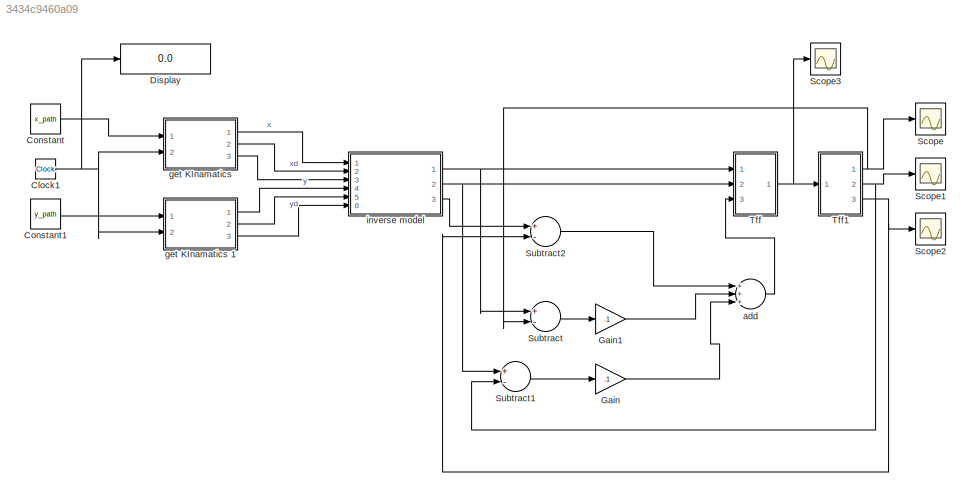
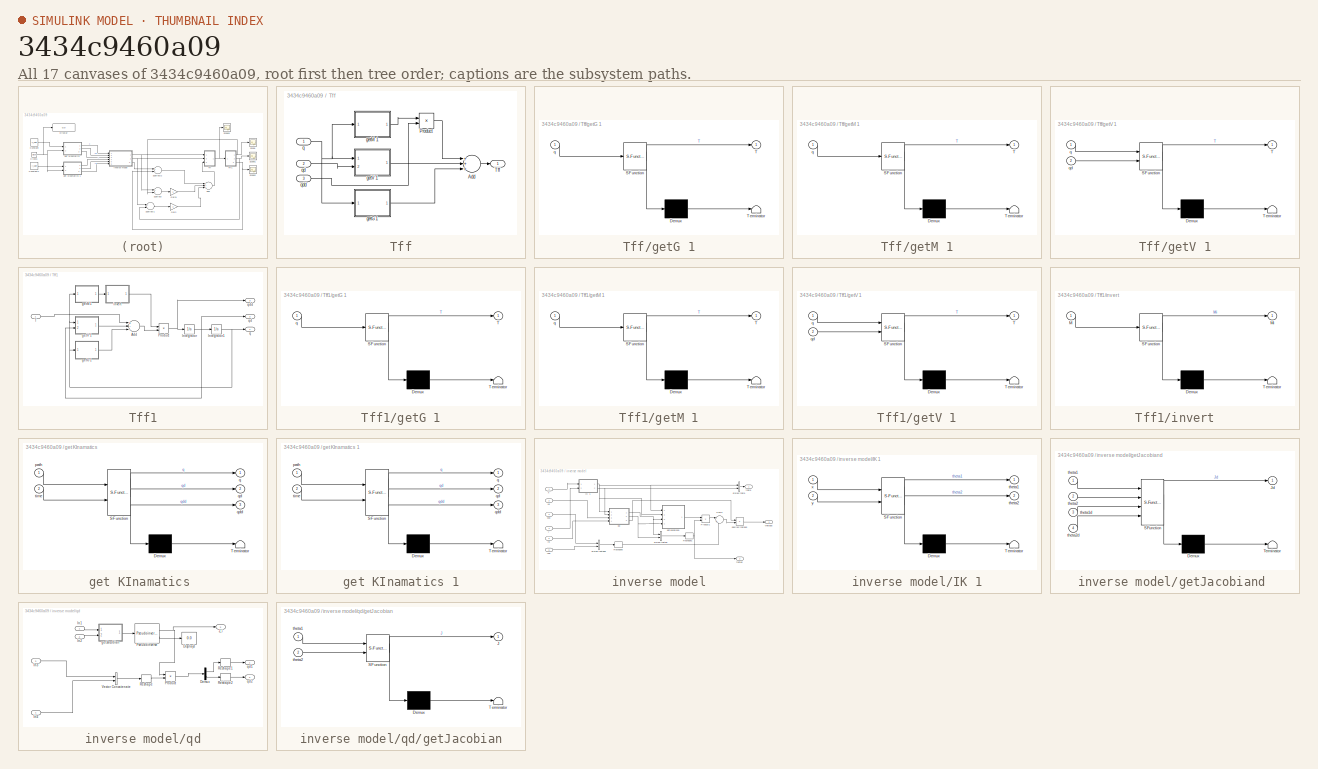
[diagram: thumbnail index - all 17 canvases of the model, root first then tree order]
MODEL slx_3434c9460a09
KIND model
CONFIG AbsTol = auto
CONFIG FixedStep = auto
CONFIG MaxStep = auto
CONFIG MinStep = auto
CONFIG RelTol = 1e-3
CONFIG SampleTimeConstraint = Specified
CONFIG Solver = VariableStepAuto
CONFIG SolverMode = Auto
CONFIG SolverName = VariableStepAuto
CONFIG StartTime = 0.0
CONFIG StopTime = 10
BLOCK [Clock] Clock1
BLOCK [Constant] Constant
  Value = x_path
BLOCK [Constant] Constant1
  Value = y_path
BLOCK [Display] Display
  Decimation = 1
  Ports = [1]
BLOCK [Gain] Gain
  Gain = .1
  OutDataTypeStr = Inherit: Inherit via internal rule
  ParamDataTypeStr = Inherit: Inherit via internal rule
  SaturateOnIntegerOverflow = off
BLOCK [Gain] Gain1
  Gain = .1
  OutDataTypeStr = Inherit: Inherit via internal rule
  ParamDataTypeStr = Inherit: Inherit via internal rule
  SaturateOnIntegerOverflow = off
BLOCK [Scope] Scope
  Ports = [1]
  ScopeSpecificationString = Simulink.scopes.TimeScopeBlockCfg('CurrentConfiguration', extmgr.ConfigurationSet(extmgr.Configuration('Core','General UI',true),extmgr.Configuration('Core','Source UI',true),extmgr.Configuration('Sources','WiredSimulink',true),extmgr.Configuration('Visuals','Time Domain',true,'SerializedDisplays',{struct('MinYLimReal','36199.25705','MaxYLimReal','48927.23224','YLabelReal','','MinYLimMag','36199.2...<+1440ch>
BLOCK [Scope] Scope1
  Ports = [1]
  ScopeSpecificationString = Simulink.scopes.TimeScopeBlockCfg('CurrentConfiguration', extmgr.ConfigurationSet(extmgr.Configuration('Core','General UI',true),extmgr.Configuration('Core','Source UI',true),extmgr.Configuration('Sources','WiredSimulink',true,'DataLoggingVariableName','ScopeData1'),extmgr.Configuration('Visuals','Time Domain',true,'SerializedDisplays',{struct('MinYLimReal','-3125.25676','MaxYLimReal','14810.27464...<+1477ch>
BLOCK [Scope] Scope2
  Ports = [1]
  ScopeSpecificationString = C++SS(StrPVP('SaveName','ScopeData'),StrPVP('SaveName','ScopeData2'),StrPVP('LimitDataPoints','on'),StrPVP('DataFormat','Array'),StrPVP('Decimation','1'),StrPVP('BlockParamSampleInput','off'))
BLOCK [Scope] Scope3
  Ports = [1]
  ScopeSpecificationString = Simulink.scopes.TimeScopeBlockCfg('CurrentConfiguration', extmgr.ConfigurationSet(extmgr.Configuration('Core','General UI',true),extmgr.Configuration('Core','Source UI',true),extmgr.Configuration('Sources','WiredSimulink',true,'DataLoggingVariableName','ScopeData3'),extmgr.Configuration('Visuals','Time Domain',true,'SerializedDisplays',{struct('MinYLimReal','-55107.98391','MaxYLimReal','494839.130...<+1459ch>
BLOCK [Sum] Subtract
  InputSameDT = off
  Inputs = +-
  OutDataTypeStr = Inherit: Inherit via internal rule
  Ports = [2, 1]
  SaturateOnIntegerOverflow = off
BLOCK [Sum] Subtract1
  InputSameDT = off
  Inputs = +-
  OutDataTypeStr = Inherit: Inherit via internal rule
  Ports = [2, 1]
  SaturateOnIntegerOverflow = off
BLOCK [Sum] Subtract2
  InputSameDT = off
  Inputs = +-
  OutDataTypeStr = Inherit: Inherit via internal rule
  Ports = [2, 1]
  SaturateOnIntegerOverflow = off
BLOCK [SubSystem] Tff
  Ports = [3, 1]
  RequestExecContextInheritance = off
  Variant = off
BLOCK [Sum] Tff/Add
  InputSameDT = off
  Inputs = +++
  OutDataTypeStr = Inherit: Inherit via internal rule
  Ports = [3, 1]
  SaturateOnIntegerOverflow = off
BLOCK [Product] Tff/Product
  InputSameDT = off
  Multiplication = Matrix(*)
  OutDataTypeStr = Inherit: Inherit via internal rule
  Ports = [2, 1]
  RndMeth = Floor
  SaturateOnIntegerOverflow = off
BLOCK [Outport] Tff/Tff
  IconDisplay = Port number
BLOCK [SubSystem] Tff/getG 1
  ErrorFcn = Stateflow.Translate.translate
  PermitHierarchicalResolution = ExplicitOnly
  Ports = [1, 1]
  RequestExecContextInheritance = off
  SFBlockType = MATLAB Function
  TreatAsAtomicUnit = on
  Variant = off
BLOCK [Demux] Tff/getG 1/ Demux 
  Outputs = 1
  Ports = [1, 1]
BLOCK [S-Function] Tff/getG 1/ SFunction 
  EnableBusSupport = on
  FunctionName = sf_sfun
  PortCounts = [1 2]
  Ports = [1, 2]
  SFunctionDeploymentMode = off
  Tag = Stateflow S-Function problem2_1 8
BLOCK [Terminator] Tff/getG 1/ Terminator 
BLOCK [Outport] Tff/getG 1/T
  IconDisplay = Port number
BLOCK [Inport] Tff/getG 1/q
  IconDisplay = Port number
BLOCK [SubSystem] Tff/getM 1
  ErrorFcn = Stateflow.Translate.translate
  PermitHierarchicalResolution = ExplicitOnly
  Ports = [1, 1]
  RequestExecContextInheritance = off
  SFBlockType = MATLAB Function
  TreatAsAtomicUnit = on
  Variant = off
BLOCK [Demux] Tff/getM 1/ Demux 
  Outputs = 1
  Ports = [1, 1]
BLOCK [S-Function] Tff/getM 1/ SFunction 
  EnableBusSupport = on
  FunctionName = sf_sfun
  PortCounts = [1 2]
  Ports = [1, 2]
  SFunctionDeploymentMode = off
  Tag = Stateflow S-Function problem2_1 6
BLOCK [Terminator] Tff/getM 1/ Terminator 
BLOCK [Outport] Tff/getM 1/T
  IconDisplay = Port number
BLOCK [Inport] Tff/getM 1/q
  IconDisplay = Port number
BLOCK [SubSystem] Tff/getV 1
  ErrorFcn = Stateflow.Translate.translate
  PermitHierarchicalResolution = ExplicitOnly
  Ports = [2, 1]
  RequestExecContextInheritance = off
  SFBlockType = MATLAB Function
  TreatAsAtomicUnit = on
  Variant = off
BLOCK [Demux] Tff/getV 1/ Demux 
  Outputs = 1
  Ports = [1, 1]
BLOCK [S-Function] Tff/getV 1/ SFunction 
  EnableBusSupport = on
  FunctionName = sf_sfun
  PortCounts = [2 2]
  Ports = [2, 2]
  SFunctionDeploymentMode = off
  Tag = Stateflow S-Function problem2_1 7
BLOCK [Terminator] Tff/getV 1/ Terminator 
BLOCK [Outport] Tff/getV 1/T
  IconDisplay = Port number
BLOCK [Inport] Tff/getV 1/q
  IconDisplay = Port number
BLOCK [Inport] Tff/getV 1/qd
  IconDisplay = Port number
  Port = 2
BLOCK [Inport] Tff/q
  IconDisplay = Port number
BLOCK [Inport] Tff/qd
  IconDisplay = Port number
  Port = 2
BLOCK [Inport] Tff/qdd
  IconDisplay = Port number
  Port = 3
BLOCK [SubSystem] Tff1
  Ports = [1, 3]
  RequestExecContextInheritance = off
  Variant = off
BLOCK [Sum] Tff1/Add
  InputSameDT = off
  Inputs = +--
  OutDataTypeStr = Inherit: Inherit via internal rule
  Ports = [3, 1]
  SaturateOnIntegerOverflow = off
BLOCK [Integrator] Tff1/Integrator
  InitialCondition = [0;0]
  Ports = [1, 1]
BLOCK [Integrator] Tff1/Integrator1
  InitialCondition = x2_i
  Ports = [1, 1]
BLOCK [Product] Tff1/Product
  InputSameDT = off
  Multiplication = Matrix(*)
  OutDataTypeStr = Inherit: Inherit via internal rule
  Ports = [2, 1]
  RndMeth = Floor
  SaturateOnIntegerOverflow = off
BLOCK [Inport] Tff1/T
  IconDisplay = Port number
BLOCK [SubSystem] Tff1/getG 1
  ErrorFcn = Stateflow.Translate.translate
  PermitHierarchicalResolution = ExplicitOnly
  Ports = [1, 1]
  RequestExecContextInheritance = off
  SFBlockType = MATLAB Function
  TreatAsAtomicUnit = on
  Variant = off
BLOCK [Demux] Tff1/getG 1/ Demux 
  Outputs = 1
  Ports = [1, 1]
BLOCK [S-Function] Tff1/getG 1/ SFunction 
  EnableBusSupport = on
  FunctionName = sf_sfun
  PortCounts = [1 2]
  Ports = [1, 2]
  SFunctionDeploymentMode = off
  Tag = Stateflow S-Function problem2_1 9
BLOCK [Terminator] Tff1/getG 1/ Terminator 
BLOCK [Outport] Tff1/getG 1/T
  IconDisplay = Port number
BLOCK [Inport] Tff1/getG 1/q
  IconDisplay = Port number
BLOCK [SubSystem] Tff1/getM 1
  ErrorFcn = Stateflow.Translate.translate
  PermitHierarchicalResolution = ExplicitOnly
  Ports = [1, 1]
  RequestExecContextInheritance = off
  SFBlockType = MATLAB Function
  TreatAsAtomicUnit = on
  Variant = off
BLOCK [Demux] Tff1/getM 1/ Demux 
  Outputs = 1
  Ports = [1, 1]
BLOCK [S-Function] Tff1/getM 1/ SFunction 
  EnableBusSupport = on
  FunctionName = sf_sfun
  PortCounts = [1 2]
  Ports = [1, 2]
  SFunctionDeploymentMode = off
  Tag = Stateflow S-Function problem2_1 10
BLOCK [Terminator] Tff1/getM 1/ Terminator 
BLOCK [Outport] Tff1/getM 1/T
  IconDisplay = Port number
BLOCK [Inport] Tff1/getM 1/q
  IconDisplay = Port number
BLOCK [SubSystem] Tff1/getV 1
  ErrorFcn = Stateflow.Translate.translate
  PermitHierarchicalResolution = ExplicitOnly
  Ports = [2, 1]
  RequestExecContextInheritance = off
  SFBlockType = MATLAB Function
  TreatAsAtomicUnit = on
  Variant = off
BLOCK [Demux] Tff1/getV 1/ Demux 
  Outputs = 1
  Ports = [1, 1]
BLOCK [S-Function] Tff1/getV 1/ SFunction 
  EnableBusSupport = on
  FunctionName = sf_sfun
  PortCounts = [2 2]
  Ports = [2, 2]
  SFunctionDeploymentMode = off
  Tag = Stateflow S-Function problem2_1 11
BLOCK [Terminator] Tff1/getV 1/ Terminator 
BLOCK [Outport] Tff1/getV 1/T
  IconDisplay = Port number
BLOCK [Inport] Tff1/getV 1/q
  IconDisplay = Port number
BLOCK [Inport] Tff1/getV 1/qd
  IconDisplay = Port number
  Port = 2
BLOCK [SubSystem] Tff1/invert
  ErrorFcn = Stateflow.Translate.translate
  PermitHierarchicalResolution = ExplicitOnly
  Ports = [1, 1]
  RequestExecContextInheritance = off
  SFBlockType = MATLAB Function
  TreatAsAtomicUnit = on
  Variant = off
BLOCK [Demux] Tff1/invert/ Demux 
  Outputs = 1
  Ports = [1, 1]
BLOCK [S-Function] Tff1/invert/ SFunction 
  EnableBusSupport = on
  FunctionName = sf_sfun
  PortCounts = [1 2]
  Ports = [1, 2]
  SFunctionDeploymentMode = off
  Tag = Stateflow S-Function problem2_1 12
BLOCK [Terminator] Tff1/invert/ Terminator 
BLOCK [Inport] Tff1/invert/M
  IconDisplay = Port number
BLOCK [Outport] Tff1/invert/Mi
  IconDisplay = Port number
BLOCK [Outport] Tff1/q
  IconDisplay = Port number
BLOCK [Outport] Tff1/qd
  IconDisplay = Port number
  Port = 2
BLOCK [Outport] Tff1/qdd
  IconDisplay = Port number
  Port = 3
BLOCK [Sum] add 
  InputSameDT = off
  Inputs = +++
  OutDataTypeStr = Inherit: Inherit via internal rule
  Ports = [3, 1]
  SaturateOnIntegerOverflow = off
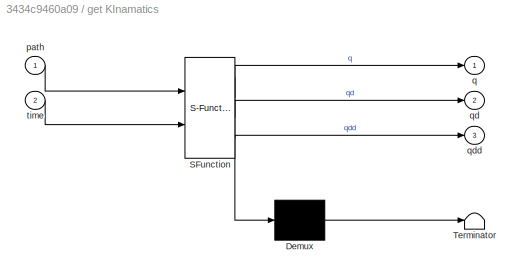
BLOCK [SubSystem] get KInamatics 
  ErrorFcn = Stateflow.Translate.translate
  PermitHierarchicalResolution = ExplicitOnly
  Ports = [2, 3]
  RequestExecContextInheritance = off
  SFBlockType = MATLAB Function
  TreatAsAtomicUnit = on
  Variant = off
BLOCK [Demux] get KInamatics / Demux 
  Outputs = 1
  Ports = [1, 1]
BLOCK [S-Function] get KInamatics / SFunction 
  EnableBusSupport = on
  FunctionName = sf_sfun
  PortCounts = [2 4]
  Ports = [2, 4]
  SFunctionDeploymentMode = off
  Tag = Stateflow S-Function problem2_1 2
BLOCK [Terminator] get KInamatics / Terminator 
BLOCK [Inport] get KInamatics /path
  IconDisplay = Port number
BLOCK [Outport] get KInamatics /q
  IconDisplay = Port number
BLOCK [Outport] get KInamatics /qd
  IconDisplay = Port number
  Port = 2
BLOCK [Outport] get KInamatics /qdd
  IconDisplay = Port number
  Port = 3
BLOCK [Inport] get KInamatics /time
  IconDisplay = Port number
  Port = 2
BLOCK [SubSystem] get KInamatics 1
  ErrorFcn = Stateflow.Translate.translate
  PermitHierarchicalResolution = ExplicitOnly
  Ports = [2, 3]
  RequestExecContextInheritance = off
  SFBlockType = MATLAB Function
  TreatAsAtomicUnit = on
  Variant = off
BLOCK [Demux] get KInamatics 1/ Demux 
  Outputs = 1
  Ports = [1, 1]
BLOCK [S-Function] get KInamatics 1/ SFunction 
  EnableBusSupport = on
  FunctionName = sf_sfun
  PortCounts = [2 4]
  Ports = [2, 4]
  SFunctionDeploymentMode = off
  Tag = Stateflow S-Function problem2_1 1
BLOCK [Terminator] get KInamatics 1/ Terminator 
BLOCK [Inport] get KInamatics 1/path
  IconDisplay = Port number
BLOCK [Outport] get KInamatics 1/q
  IconDisplay = Port number
BLOCK [Outport] get KInamatics 1/qd
  IconDisplay = Port number
  Port = 2
BLOCK [Outport] get KInamatics 1/qdd
  IconDisplay = Port number
  Port = 3
BLOCK [Inport] get KInamatics 1/time
  IconDisplay = Port number
  Port = 2
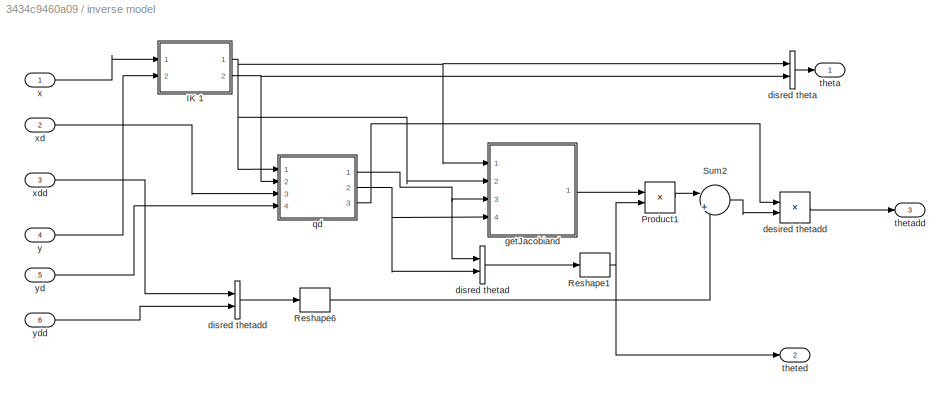
BLOCK [SubSystem] inverse model
  Ports = [6, 3]
  RequestExecContextInheritance = off
  Variant = off
BLOCK [SubSystem] inverse model/IK 1
  ErrorFcn = Stateflow.Translate.translate
  PermitHierarchicalResolution = ExplicitOnly
  Ports = [2, 2]
  RequestExecContextInheritance = off
  SFBlockType = MATLAB Function
  TreatAsAtomicUnit = on
  Variant = off
BLOCK [Demux] inverse model/IK 1/ Demux 
  Outputs = 1
  Ports = [1, 1]
BLOCK [S-Function] inverse model/IK 1/ SFunction 
  EnableBusSupport = on
  FunctionName = sf_sfun
  PortCounts = [2 3]
  Ports = [2, 3]
  SFunctionDeploymentMode = off
  Tag = Stateflow S-Function problem2_1 4
BLOCK [Terminator] inverse model/IK 1/ Terminator 
BLOCK [Outport] inverse model/IK 1/theta1
  IconDisplay = Port number
BLOCK [Outport] inverse model/IK 1/theta2
  IconDisplay = Port number
  Port = 2
BLOCK [Inport] inverse model/IK 1/x
  IconDisplay = Port number
BLOCK [Inport] inverse model/IK 1/y
  IconDisplay = Port number
  Port = 2
BLOCK [Product] inverse model/Product1
  InputSameDT = off
  Multiplication = Matrix(*)
  OutDataTypeStr = Inherit: Inherit via internal rule
  Ports = [2, 1]
  RndMeth = Floor
  SaturateOnIntegerOverflow = off
BLOCK [Reshape] inverse model/Reshape1
  OutputDimensionality = Column vector (2-D)
  Ports = [1, 1]
BLOCK [Reshape] inverse model/Reshape6
  OutputDimensionality = Column vector (2-D)
  Ports = [1, 1]
BLOCK [Sum] inverse model/Sum2
  IconShape = round
  InputSameDT = off
  Inputs = |+-
  OutDataTypeStr = Inherit: Inherit via internal rule
  Ports = [2, 1]
  SaturateOnIntegerOverflow = off
BLOCK [Product] inverse model/desired thetadd
  InputSameDT = off
  Multiplication = Matrix(*)
  OutDataTypeStr = Inherit: Inherit via internal rule
  Ports = [2, 1]
  RndMeth = Floor
  SaturateOnIntegerOverflow = off
BLOCK [Concatenate] inverse model/disred theta
  Ports = [2, 1]
BLOCK [Concatenate] inverse model/disred thetad
  Ports = [2, 1]
BLOCK [Concatenate] inverse model/disred thetadd 
  Ports = [2, 1]
BLOCK [SubSystem] inverse model/getJacobiand 
  ErrorFcn = Stateflow.Translate.translate
  PermitHierarchicalResolution = ExplicitOnly
  Ports = [4, 1]
  RequestExecContextInheritance = off
  SFBlockType = MATLAB Function
  TreatAsAtomicUnit = on
  Variant = off
BLOCK [Demux] inverse model/getJacobiand / Demux 
  Outputs = 1
  Ports = [1, 1]
BLOCK [S-Function] inverse model/getJacobiand / SFunction 
  EnableBusSupport = on
  FunctionName = sf_sfun
  PortCounts = [4 2]
  Ports = [4, 2]
  SFunctionDeploymentMode = off
  Tag = Stateflow S-Function problem2_1 3
BLOCK [Terminator] inverse model/getJacobiand / Terminator 
BLOCK [Outport] inverse model/getJacobiand /Jd
  IconDisplay = Port number
BLOCK [Inport] inverse model/getJacobiand /theta1
  IconDisplay = Port number
BLOCK [Inport] inverse model/getJacobiand /theta1d
  IconDisplay = Port number
  Port = 3
BLOCK [Inport] inverse model/getJacobiand /theta2
  IconDisplay = Port number
  Port = 2
BLOCK [Inport] inverse model/getJacobiand /theta2d
  IconDisplay = Port number
  Port = 4
BLOCK [SubSystem] inverse model/qd
  Ports = [4, 3]
  RequestExecContextInheritance = off
  Variant = off
BLOCK [Demux] inverse model/qd/Demux
  DisplayOption = bar
  Outputs = 2
  Ports = [1, 2]
BLOCK [Display] inverse model/qd/Display3
  Decimation = 1
  Ports = [1]
BLOCK [Inport] inverse model/qd/In1
  IconDisplay = Port number
BLOCK [Inport] inverse model/qd/In2
  IconDisplay = Port number
  Port = 2
BLOCK [Inport] inverse model/qd/In3
  IconDisplay = Port number
  Port = 3
BLOCK [Inport] inverse model/qd/In4
  IconDisplay = Port number
  Port = 4
BLOCK [Outport] inverse model/qd/J_i
  IconDisplay = Port number
  Port = 3
BLOCK [Product] inverse model/qd/Product
  InputSameDT = off
  Multiplication = Matrix(*)
  OutDataTypeStr = Inherit: Inherit via internal rule
  Ports = [2, 1]
  RndMeth = Floor
  SaturateOnIntegerOverflow = off
BLOCK [Reference] inverse model/qd/Pseudoinverse  REF=dspinverses/Pseudoinverse
  Ports = [1, 2]
  SourceBlock = dspinverses/Pseudoinverse
  SourceType = Pseudoinverse
BLOCK [Reshape] inverse model/qd/Reshape
  OutputDimensionality = Column vector (2-D)
  Ports = [1, 1]
BLOCK [Reshape] inverse model/qd/Reshape1
  OutputDimensionality = Customize
  OutputDimensions = 1
  Ports = [1, 1]
BLOCK [Reshape] inverse model/qd/Reshape2
  OutputDimensionality = Customize
  OutputDimensions = 1
  Ports = [1, 1]
BLOCK [Concatenate] inverse model/qd/Vector Concatenate
  Ports = [2, 1]
BLOCK [SubSystem] inverse model/qd/getJacobian
  ErrorFcn = Stateflow.Translate.translate
  PermitHierarchicalResolution = ExplicitOnly
  Ports = [2, 1]
  RequestExecContextInheritance = off
  SFBlockType = MATLAB Function
  TreatAsAtomicUnit = on
  Variant = off
BLOCK [Demux] inverse model/qd/getJacobian/ Demux 
  Outputs = 1
  Ports = [1, 1]
BLOCK [S-Function] inverse model/qd/getJacobian/ SFunction 
  EnableBusSupport = on
  FunctionName = sf_sfun
  PortCounts = [2 2]
  Ports = [2, 2]
  SFunctionDeploymentMode = off
  Tag = Stateflow S-Function problem2_1 5
BLOCK [Terminator] inverse model/qd/getJacobian/ Terminator 
BLOCK [Outport] inverse model/qd/getJacobian/J
  IconDisplay = Port number
BLOCK [Inport] inverse model/qd/getJacobian/theta1
  IconDisplay = Port number
BLOCK [Inport] inverse model/qd/getJacobian/theta2
  IconDisplay = Port number
  Port = 2
BLOCK [Outport] inverse model/qd/qd1
  IconDisplay = Port number
BLOCK [Outport] inverse model/qd/qd2
  IconDisplay = Port number
  Port = 2
BLOCK [Outport] inverse model/theta
  IconDisplay = Port number
BLOCK [Outport] inverse model/thetadd
  IconDisplay = Port number
  Port = 3
BLOCK [Outport] inverse model/theted
  IconDisplay = Port number
  Port = 2
BLOCK [Inport] inverse model/x
  IconDisplay = Port number
BLOCK [Inport] inverse model/xd
  IconDisplay = Port number
  Port = 2
BLOCK [Inport] inverse model/xdd
  IconDisplay = Port number
  Port = 3
BLOCK [Inport] inverse model/y
  IconDisplay = Port number
  Port = 4
BLOCK [Inport] inverse model/yd
  IconDisplay = Port number
  Port = 5
BLOCK [Inport] inverse model/ydd
  IconDisplay = Port number
  Port = 6
NET Clock1:1 -> Display:1, get KInamatics 1:2, get KInamatics :2
LINE Constant1:1 -> get KInamatics 1:1
LINE Constant:1 -> get KInamatics :1
LINE Gain1:1 -> add :2
LINE Gain:1 -> add :3
LINE Subtract1:1 -> Gain:1
LINE Subtract2:1 -> add :1
LINE Subtract:1 -> Gain1:1
LINE Tff/Add:1 -> Tff/Tff:1
LINE Tff/Product:1 -> Tff/Add:1
LINE Tff/getG 1:1 -> Tff/Add:3
LINE Tff/getM 1:1 -> Tff/Product:1
LINE Tff/getV 1:1 -> Tff/Add:2
NET Tff/q:1 -> Tff/getG 1:1, Tff/getM 1:1, Tff/getV 1:1
LINE Tff/qd:1 -> Tff/getV 1:2
LINE Tff/qdd:1 -> Tff/Product:2
LINE Tff1/Add:1 -> Tff1/Product:2
NET Tff1/Integrator1:1 -> Tff1/getG 1:1, Tff1/getM 1:1, Tff1/getV 1:1, Tff1/q:1
NET Tff1/Integrator:1 -> Tff1/Integrator1:1, Tff1/getV 1:2, Tff1/qd:1
NET Tff1/Product:1 -> Tff1/Integrator:1, Tff1/qdd:1
LINE Tff1/T:1 -> Tff1/Add:1
LINE Tff1/getG 1:1 -> Tff1/Add:3
LINE Tff1/getM 1:1 -> Tff1/invert:1
LINE Tff1/getV 1:1 -> Tff1/Add:2
LINE Tff1/invert:1 -> Tff1/Product:1
NET Tff1:1 -> Scope:1, Subtract:2
NET Tff1:2 -> Scope1:1, Subtract1:2
NET Tff1:3 -> Scope2:1, Subtract2:2
NET Tff:1 -> Scope3:1, Tff1:1
LINE add :1 -> Tff:3
LINE get KInamatics 1:1 -> inverse model:4
LINE get KInamatics 1:2 -> inverse model:5
LINE get KInamatics 1:3 -> inverse model:6
LINE get KInamatics :1 -> inverse model:1
LINE get KInamatics :2 -> inverse model:2
LINE get KInamatics :3 -> inverse model:3
NET inverse model/IK 1:1 -> inverse model/disred theta:1, inverse model/getJacobiand :1, inverse model/getJacobiand :2, inverse model/qd:1
NET inverse model/IK 1:2 -> inverse model/disred theta:2, inverse model/qd:2
LINE inverse model/Product1:1 -> inverse model/Sum2:1
NET inverse model/Reshape1:1 -> inverse model/Product1:2, inverse model/theted:1
LINE inverse model/Reshape6:1 -> inverse model/Sum2:2
LINE inverse model/Sum2:1 -> inverse model/desired thetadd:2
LINE inverse model/desired thetadd:1 -> inverse model/thetadd:1
LINE inverse model/disred theta:1 -> inverse model/theta:1
LINE inverse model/disred thetad:1 -> inverse model/Reshape1:1
LINE inverse model/disred thetadd :1 -> inverse model/Reshape6:1
LINE inverse model/getJacobiand :1 -> inverse model/Product1:1
LINE inverse model/qd/Demux:1 -> inverse model/qd/Reshape1:1
LINE inverse model/qd/Demux:2 -> inverse model/qd/Reshape2:1
LINE inverse model/qd/In1:1 -> inverse model/qd/getJacobian:1
LINE inverse model/qd/In2:1 -> inverse model/qd/getJacobian:2
LINE inverse model/qd/In3:1 -> inverse model/qd/Vector Concatenate:1
LINE inverse model/qd/In4:1 -> inverse model/qd/Vector Concatenate:2
LINE inverse model/qd/Product:1 -> inverse model/qd/Demux:1
NET inverse model/qd/Pseudoinverse:1 -> inverse model/qd/J_i:1, inverse model/qd/Product:1
LINE inverse model/qd/Pseudoinverse:2 -> inverse model/qd/Display3:1
LINE inverse model/qd/Reshape1:1 -> inverse model/qd/qd1:1
LINE inverse model/qd/Reshape2:1 -> inverse model/qd/qd2:1
LINE inverse model/qd/Reshape:1 -> inverse model/qd/Product:2
LINE inverse model/qd/Vector Concatenate:1 -> inverse model/qd/Reshape:1
LINE inverse model/qd/getJacobian:1 -> inverse model/qd/Pseudoinverse:1
NET inverse model/qd:1 -> inverse model/disred thetad:1, inverse model/getJacobiand :3
NET inverse model/qd:2 -> inverse model/disred thetad:2, inverse model/getJacobiand :4
LINE inverse model/qd:3 -> inverse model/desired thetadd:1
LINE inverse model/x:1 -> inverse model/IK 1:1
LINE inverse model/xd:1 -> inverse model/qd:3
LINE inverse model/xdd:1 -> inverse model/disred thetadd :1
LINE inverse model/y:1 -> inverse model/IK 1:2
LINE inverse model/yd:1 -> inverse model/qd:4
LINE inverse model/ydd:1 -> inverse model/disred thetadd :2
NET inverse model:1 -> Subtract:1, Tff:1
NET inverse model:2 -> Subtract1:1, Tff:2
LINE inverse model:3 -> Subtract2:1
note: NET lines group one-source signal fan-out (src -> all destinations, sorted); 1:1 wires keep LINE
CHART get KInamatics
1 states=1 transitions=1
  STATE_LABEL 'eML_blk_kernel()'
  STATE_LABEL 'SCRIPT:\nfunction [ q,qd,qdd] = fcn(path, time)\n%#codegen\n[q qd qdd] = getKin(path, time);\n'
CHART get KInamatics
 states=1 transitions=1
  STATE_LABEL 'eML_blk_kernel()'
  STATE_LABEL 'SCRIPT:\nfunction [ q,qd,qdd] = fcn(path, time)\n%#codegen\n[q qd qdd] = getKin(path, time);\n'
CHART inverse model/getJacobiand
 states=1 transitions=1
  STATE_LABEL 'eML_blk_kernel()'
  STATE_LABEL 'SCRIPT:\nfunction Jd  = fcn(theta1,theta2, theta1d, theta2d)\n%#codegen\nJd = getJacobiandot(theta1,theta1d,theta2,theta2d);\n'
CHART inverse model/IK
1 states=1 transitions=1
  STATE_LABEL 'eML_blk_kernel()'
  STATE_LABEL 'SCRIPT:\nfunction [ theta1, theta2] = fcn(x, y)\n%#codegen\n[theta1 theta2] = IK(x, y);\n'
CHART inverse model/qd/getJacobian states=1 transitions=1
  STATE_LABEL 'eML_blk_kernel()'
  STATE_LABEL 'SCRIPT:\nfunction J  = fcn(theta1, theta2)\n%#codegen\nJ = getJacobian(theta1,theta2);\n'
CHART Tff/getM 1 states=1 transitions=1
  STATE_LABEL 'eML_blk_kernel()'
  STATE_LABEL 'SCRIPT:\nfunction T = fcn(q)\n%#codegen\nT = getM(q);\n'
CHART Tff/getV 1 states=1 transitions=1
  STATE_LABEL 'eML_blk_kernel()'
  STATE_LABEL 'SCRIPT:\nfunction T = fcn(q, qd)\n%#codegen\nT = getV(q, qd);\n'
CHART Tff/getG 1 states=1 transitions=1
  STATE_LABEL 'eML_blk_kernel()'
  STATE_LABEL 'SCRIPT:\nfunction T = fcn(q)\n%#codegen\nT = getG(q);\n'
CHART Tff1/getG 1 states=1 transitions=1
  STATE_LABEL 'eML_blk_kernel()'
  STATE_LABEL 'SCRIPT:\nfunction T = fcn(q)\n%#codegen\nT = getG(q);\n'
CHART Tff1/getM 1 states=1 transitions=1
  STATE_LABEL 'eML_blk_kernel()'
  STATE_LABEL 'SCRIPT:\nfunction T = fcn(q)\n%#codegen\nT = getM(q);\n'
CHART Tff1/getV 1 states=1 transitions=1
  STATE_LABEL 'eML_blk_kernel()'
  STATE_LABEL 'SCRIPT:\nfunction T = fcn(q, qd)\n%#codegen\nT = getV(q, qd);\n'
CHART Tff1/invert states=1 transitions=1
  STATE_LABEL 'eML_blk_kernel()'
  STATE_LABEL 'SCRIPT:\nfunction Mi = fcn(M)\n%#codegen\nMi =pinv(M);\n'
